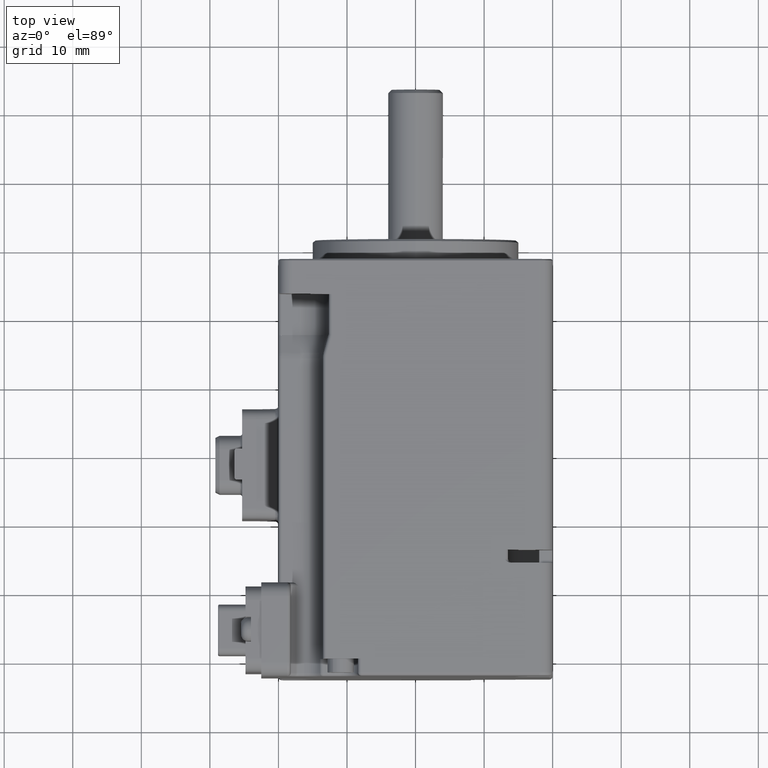
[diagram: clean part render]
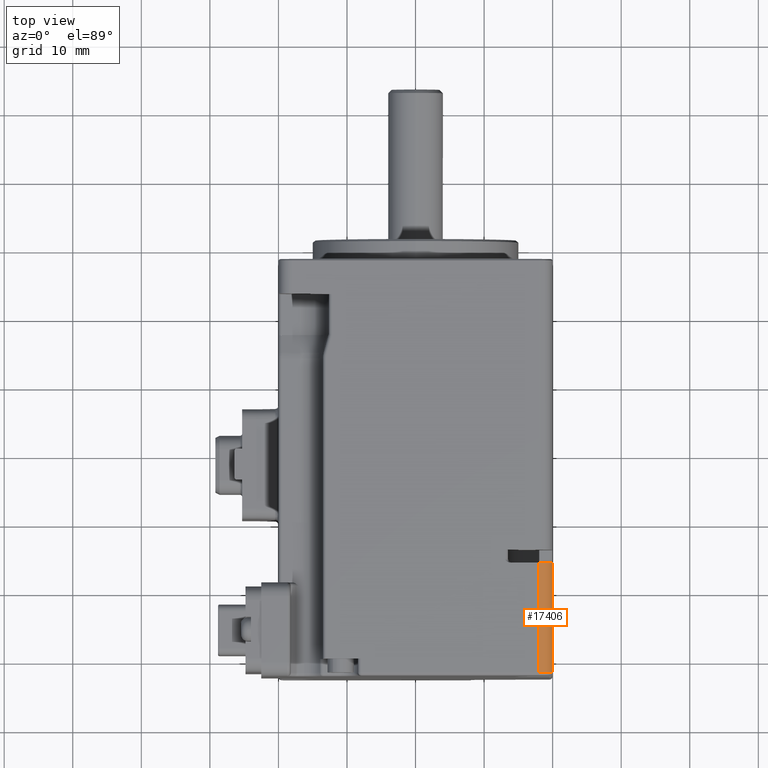
[diagram: same view with one face highlighted and labeled with its STEP entity id]
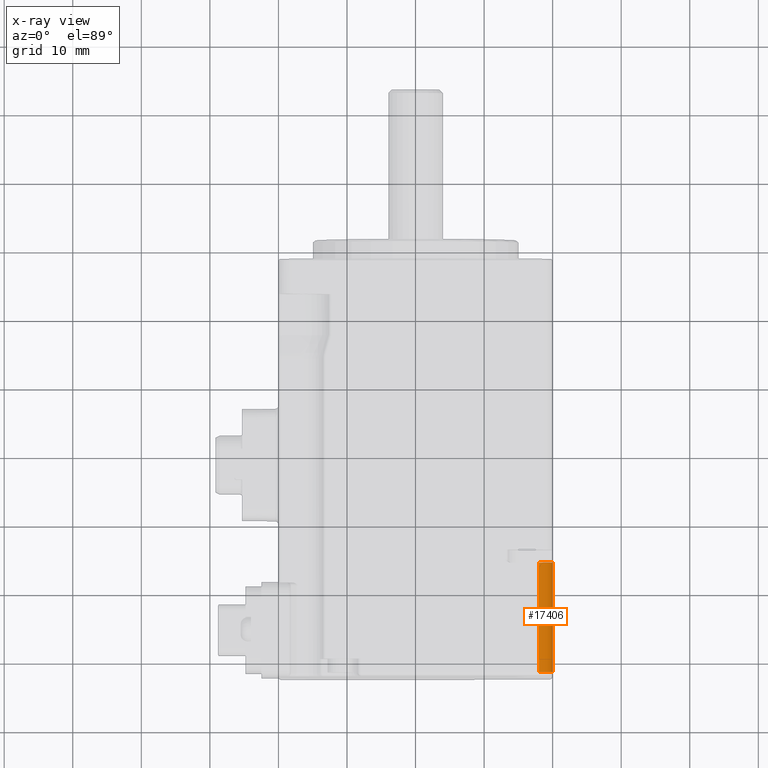
[diagram: x-ray of the same camera — body ghosted, the highlighted face saturated]
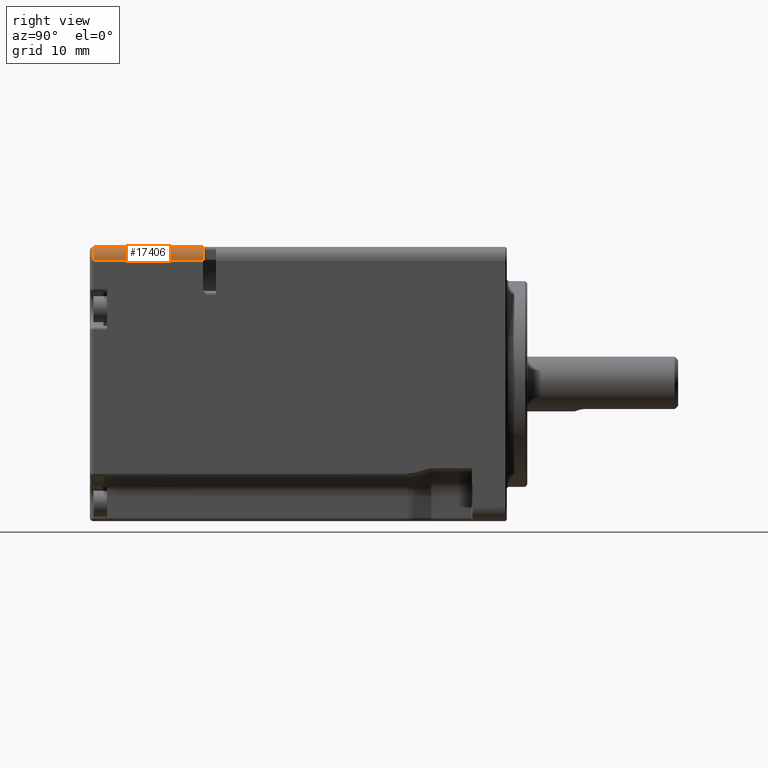
[diagram: same view with one face highlighted and labeled with its STEP entity id]
A machine part, top view. The second image highlights one B-rep face of the part: STEP entity #17406.
The next image is the same camera in x-ray: the body ghosted, the highlighted face saturated — about 0% of this face is hidden behind the body in this view.
A second angle (right view) of the same face is appended — the face is thin or edge-on in the first view.
In plain terms, the highlighted cylindrical surface (edge-blend (fillet) strip) has radius 2 mm, axis along (-0, 1, 0).
Its self-contained STEP definition (entity closure, byte-faithful):
#372 = DIRECTION ( 'NONE',  ( -2.428612866367538807E-16, 1.000000000000000000, 1.165734175856418509E-15 ) ) ;
#765 = DIRECTION ( 'NONE',  ( -2.428612866367538807E-16, 1.000000000000000000, 1.165734175856418706E-15 ) ) ;
#930 = CARTESIAN_POINT ( 'NONE',  ( 17.99999999999987921, -21.90000000000005187, 20.00000000000004619 ) ) ;
#3339 = AXIS2_PLACEMENT_3D ( 'NONE', #17653, #15040, #10053 ) ;
#3388 = LINE ( 'NONE', #13985, #22490 ) ;
#3811 = DIRECTION ( 'NONE',  ( 2.428612866367538807E-16, -1.000000000000000000, -1.165734175856418706E-15 ) ) ;
#4989 = VECTOR ( 'NONE', #3811, 1000.000000000000000 ) ;
#5000 = VERTEX_POINT ( 'NONE', #14456 ) ;
#7244 = VERTEX_POINT ( 'NONE', #930 ) ;
#8011 = CARTESIAN_POINT ( 'NONE',  ( 17.99999999999987566, -5.900000000000058087, 20.00000000000006395 ) ) ;
#8422 = CARTESIAN_POINT ( 'NONE',  ( 17.99999999999988987, -2.500000000000054179, 18.00000000000006750 ) ) ;
#9516 = AXIS2_PLACEMENT_3D ( 'NONE', #8422, #372, #11002 ) ;
#10053 = DIRECTION ( 'NONE',  ( 6.938893903907222067E-15, 1.301042606982604138E-15, -1.000000000000000000 ) ) ;
#11002 = DIRECTION ( 'NONE',  ( 6.938893903907234689E-15, 1.084202172485505420E-15, -1.000000000000000000 ) ) ;
#11523 = ORIENTED_EDGE ( 'NONE', *, *, #24231, .F. ) ;
#11679 = VERTEX_POINT ( 'NONE', #30078 ) ;
#12635 = EDGE_CURVE ( 'NONE', #7244, #14301, #3388, .T. ) ;
#12714 = CARTESIAN_POINT ( 'NONE',  ( 17.99999999999989342, -21.90000000000004832, 18.00000000000004619 ) ) ;
#13196 = DIRECTION ( 'NONE',  ( -2.428612866367538807E-16, 1.000000000000000000, 1.165734175856418509E-15 ) ) ;
#13596 = FACE_OUTER_BOUND ( 'NONE', #14693, .T. ) ;
#13985 = CARTESIAN_POINT ( 'NONE',  ( 17.99999999999987566, -5.900000000000058087, 20.00000000000006395 ) ) ;
#14227 = LINE ( 'NONE', #25245, #4989 ) ;
#14301 = VERTEX_POINT ( 'NONE', #8011 ) ;
#14456 = CARTESIAN_POINT ( 'NONE',  ( 19.99999999999988987, -5.900000000000054534, 18.00000000000007816 ) ) ;
#14693 = EDGE_LOOP ( 'NONE', ( #21065, #15638, #11523, #21473 ) ) ;
#15040 = DIRECTION ( 'NONE',  ( -2.428612866367538807E-16, 1.000000000000000000, 1.165734175856418509E-15 ) ) ;
#15638 = ORIENTED_EDGE ( 'NONE', *, *, #20205, .T. ) ;
#16914 = EDGE_CURVE ( 'NONE', #14301, #5000, #17205, .T. ) ;
#17205 = CIRCLE ( 'NONE', #3339, 2.000000000000001776 ) ;
#17406 = ADVANCED_FACE ( 'NONE', ( #13596 ), #18998, .T. ) ;
#17653 = CARTESIAN_POINT ( 'NONE',  ( 17.99999999999988987, -5.900000000000054534, 18.00000000000006395 ) ) ;
#18998 = CYLINDRICAL_SURFACE ( 'NONE', #9516, 1.999999999999998224 ) ;
#20021 = AXIS2_PLACEMENT_3D ( 'NONE', #12714, #13196, #34227 ) ;
#20205 = EDGE_CURVE ( 'NONE', #7244, #11679, #22231, .T. ) ;
#21065 = ORIENTED_EDGE ( 'NONE', *, *, #12635, .F. ) ;
#21473 = ORIENTED_EDGE ( 'NONE', *, *, #16914, .F. ) ;
#22231 = CIRCLE ( 'NONE', #20021, 1.999999999999998224 ) ;
#22490 = VECTOR ( 'NONE', #765, 1000.000000000000000 ) ;
#24231 = EDGE_CURVE ( 'NONE', #5000, #11679, #14227, .T. ) ;
#25245 = CARTESIAN_POINT ( 'NONE',  ( 19.99999999999989342, -22.40000000000004832, 18.00000000000006040 ) ) ;
#30078 = CARTESIAN_POINT ( 'NONE',  ( 19.99999999999989342, -21.90000000000004832, 18.00000000000006040 ) ) ;
#34227 = DIRECTION ( 'NONE',  ( 6.938893903907234689E-15, 1.734723475976808672E-15, -1.000000000000000000 ) ) ;